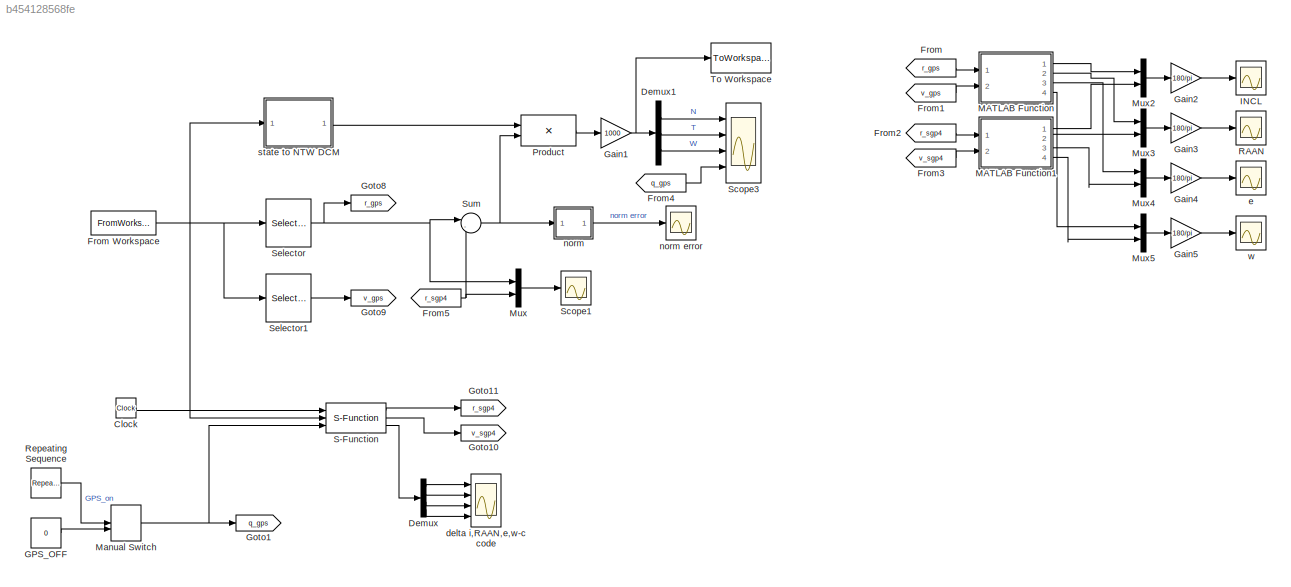
MODEL slx_b454128568fe
KIND model
CONFIG AbsTol = auto
CONFIG EnableMultiTasking = off
CONFIG FixedStep = auto
CONFIG MaxStep = auto
CONFIG MinStep = auto
CONFIG RelTol = 1e-3
CONFIG SampleTimeConstraint = Unconstrained
CONFIG Solver = VariableStepAuto
CONFIG SolverName = VariableStepAuto
CONFIG StartTime = 0.0
CONFIG StopTime = sim_stop
BLOCK [Clock] Clock
BLOCK [Demux] Demux
  DisplayOption = bar
  Ports = [1, 4]
BLOCK [Demux] Demux1
  DisplayOption = bar
  Outputs = 3
  Ports = [1, 3]
BLOCK [From] From
  GotoTag = r_gps
BLOCK [FromWorkspace] From Workspace
  VariableName = GMAT_simdata
  ZeroCross = on
BLOCK [From] From1
  GotoTag = v_gps
BLOCK [From] From2
  GotoTag = r_sgp4
BLOCK [From] From3
  GotoTag = v_sgp4
BLOCK [From] From4
  GotoTag = q_gps
BLOCK [From] From5
  GotoTag = r_sgp4
BLOCK [Constant] GPS_OFF
  Value = 0
BLOCK [Gain] Gain1
  Gain = 1000
  OutDataTypeStr = Inherit: Inherit via internal rule
  ParamDataTypeStr = Inherit: Inherit via internal rule
  SaturateOnIntegerOverflow = off
BLOCK [Gain] Gain2
  Gain = 180/pi
  OutDataTypeStr = Inherit: Inherit via internal rule
  ParamDataTypeStr = Inherit: Inherit via internal rule
  SaturateOnIntegerOverflow = off
BLOCK [Gain] Gain3
  Gain = 180/pi
  OutDataTypeStr = Inherit: Inherit via internal rule
  ParamDataTypeStr = Inherit: Inherit via internal rule
  SaturateOnIntegerOverflow = off
BLOCK [Gain] Gain4
  Gain = 180/pi
  OutDataTypeStr = Inherit: Inherit via internal rule
  ParamDataTypeStr = Inherit: Inherit via internal rule
  SaturateOnIntegerOverflow = off
BLOCK [Gain] Gain5
  Gain = 180/pi
  OutDataTypeStr = Inherit: Inherit via internal rule
  ParamDataTypeStr = Inherit: Inherit via internal rule
  SaturateOnIntegerOverflow = off
BLOCK [Goto] Goto1
  GotoTag = q_gps
BLOCK [Goto] Goto10
  GotoTag = v_sgp4
BLOCK [Goto] Goto11
  GotoTag = r_sgp4
BLOCK [Goto] Goto8
  GotoTag = r_gps
BLOCK [Goto] Goto9
  GotoTag = v_gps
BLOCK [Scope] INCL
  Floating = off
  NumInputPorts = 1
  Ports = [1]
  ScopeSpecificationString = Simulink.scopes.TimeScopeBlockCfg('CurrentConfiguration', extmgr.ConfigurationSet(extmgr.Configuration('Core','General UI',true),extmgr.Configuration('Core','Source UI',true),extmgr.Configuration('Sources','WiredSimulink',true,'DataLoggingVariableName','ScopeData2'),extmgr.Configuration('Visuals','Time Domain',true,'SerializedDisplays',{struct('MinYLimReal','51.5368','MaxYLimReal','51.64469','YLab...<+1501ch>
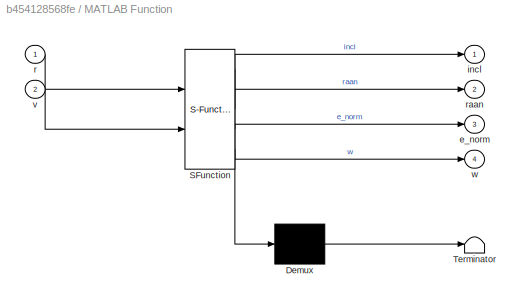
BLOCK [SubSystem] MATLAB Function
  ErrorFcn = Stateflow.Translate.translate
  PermitHierarchicalResolution = ExplicitOnly
  Ports = [2, 4]
  RequestExecContextInheritance = off
  SFBlockType = MATLAB Function
  TreatAsAtomicUnit = on
BLOCK [Demux] MATLAB Function/ Demux 
  Outputs = 1
  Ports = [1, 1]
BLOCK [S-Function] MATLAB Function/ SFunction 
  EnableBusSupport = on
  FunctionName = sf_sfun
  PortCounts = [2 5]
  Ports = [2, 5]
  SFcnIsStateOwnerBlock = off
  SFunctionDeploymentMode = off
  Tag = Stateflow S-Function augmented_sgp4_exp 1
BLOCK [Terminator] MATLAB Function/ Terminator 
BLOCK [Outport] MATLAB Function/e_norm
  IconDisplay = Port number
  Port = 3
BLOCK [Outport] MATLAB Function/incl
  IconDisplay = Port number
BLOCK [Inport] MATLAB Function/r
  IconDisplay = Port number
BLOCK [Outport] MATLAB Function/raan
  IconDisplay = Port number
  Port = 2
BLOCK [Inport] MATLAB Function/v
  IconDisplay = Port number
  Port = 2
BLOCK [Outport] MATLAB Function/w
  IconDisplay = Port number
  Port = 4
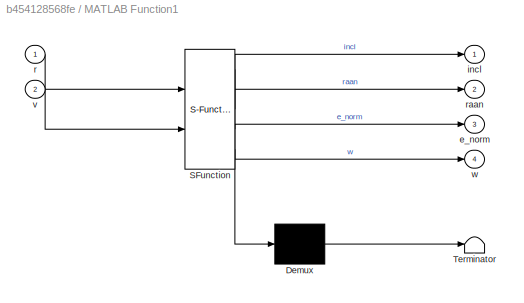
BLOCK [SubSystem] MATLAB Function1
  ErrorFcn = Stateflow.Translate.translate
  PermitHierarchicalResolution = ExplicitOnly
  Ports = [2, 4]
  RequestExecContextInheritance = off
  SFBlockType = MATLAB Function
  TreatAsAtomicUnit = on
BLOCK [Demux] MATLAB Function1/ Demux 
  Outputs = 1
  Ports = [1, 1]
BLOCK [S-Function] MATLAB Function1/ SFunction 
  EnableBusSupport = on
  FunctionName = sf_sfun
  PortCounts = [2 5]
  Ports = [2, 5]
  SFcnIsStateOwnerBlock = off
  SFunctionDeploymentMode = off
  Tag = Stateflow S-Function augmented_sgp4_exp 3
BLOCK [Terminator] MATLAB Function1/ Terminator 
BLOCK [Outport] MATLAB Function1/e_norm
  IconDisplay = Port number
  Port = 3
BLOCK [Outport] MATLAB Function1/incl
  IconDisplay = Port number
BLOCK [Inport] MATLAB Function1/r
  IconDisplay = Port number
BLOCK [Outport] MATLAB Function1/raan
  IconDisplay = Port number
  Port = 2
BLOCK [Inport] MATLAB Function1/v
  IconDisplay = Port number
  Port = 2
BLOCK [Outport] MATLAB Function1/w
  IconDisplay = Port number
  Port = 4
BLOCK [ManualSwitch] Manual Switch
BLOCK [Mux] Mux
  DisplayOption = bar
  Inputs = 2
  Ports = [2, 1]
BLOCK [Mux] Mux2
  DisplayOption = bar
  Inputs = 2
  Ports = [2, 1]
BLOCK [Mux] Mux3
  DisplayOption = bar
  Inputs = 2
  Ports = [2, 1]
BLOCK [Mux] Mux4
  DisplayOption = bar
  Inputs = 2
  Ports = [2, 1]
BLOCK [Mux] Mux5
  DisplayOption = bar
  Inputs = 2
  Ports = [2, 1]
BLOCK [Product] Product
  InputSameDT = off
  Multiplication = Matrix(*)
  OutDataTypeStr = Inherit: Inherit via internal rule
  Ports = [2, 1]
  RndMeth = Floor
  SaturateOnIntegerOverflow = off
BLOCK [Scope] RAAN
  Floating = off
  NumInputPorts = 1
  Ports = [1]
  ScopeSpecificationString = Simulink.scopes.TimeScopeBlockCfg('CurrentConfiguration', extmgr.ConfigurationSet(extmgr.Configuration('Core','General UI',true),extmgr.Configuration('Core','Source UI',true),extmgr.Configuration('Sources','WiredSimulink',true,'DataLoggingVariableName','ScopeData3'),extmgr.Configuration('Visuals','Time Domain',true,'SerializedDisplays',{struct('MinYLimReal','-44.99996','MaxYLimReal','404.99998','Y...<+1509ch>
BLOCK [Reference] Repeating Sequence  REF=simulink/Sources/Repeating
Sequence
  Ports = [0, 1]
  SourceBlock = simulink/Sources/Repeating\nSequence
  SourceProductBaseCode = SL
  SourceProductName = Simulink
  SourceType = Repeating table
BLOCK [S-Function] S-Function
  EnableBusSupport = off
  FunctionName = aSGP4
  Parameters = orbit_start_UTC
  Ports = [3, 3]
  SFcnIsStateOwnerBlock = off
  SFunctionDeploymentMode = off
BLOCK [Scope] Scope1
  Floating = off
  NumInputPorts = 1
  Ports = [1]
  ScopeSpecificationString = Simulink.scopes.TimeScopeBlockCfg('CurrentConfiguration', extmgr.ConfigurationSet(extmgr.Configuration('Core','General UI',true),extmgr.Configuration('Core','Source UI',true),extmgr.Configuration('Sources','WiredSimulink',true,'DataLoggingVariableName','ScopeData1'),extmgr.Configuration('Visuals','Time Domain',true,'SerializedDisplays',{struct('MinYLimReal','-8463.9438','MaxYLimReal','8460.06876',...<+1588ch>
BLOCK [Scope] Scope3
  Floating = off
  NumInputPorts = 4
  Ports = [4]
  ScopeSpecificationString = Simulink.scopes.TimeScopeBlockCfg('CurrentConfiguration', extmgr.ConfigurationSet(extmgr.Configuration('Core','General UI',true),extmgr.Configuration('Core','Source UI',true),extmgr.Configuration('Sources','WiredSimulink',true,'DataLoggingVariableName','ScopeData4'),extmgr.Configuration('Visuals','Time Domain',true,'SerializedDisplays',{struct('MinYLimReal','-1072.22664','MaxYLimReal','1039.87182'...<+3511ch>
BLOCK [Selector] Selector
  IndexOptions = Index vector (dialog)
  Indices = [1 2 3]
  InputPortWidth = 6
  OutputSizes = 1
  Ports = [1, 1]
BLOCK [Selector] Selector1
  IndexOptions = Index vector (dialog)
  Indices = [4 5 6]
  InputPortWidth = 6
  OutputSizes = 1
  Ports = [1, 1]
BLOCK [Sum] Sum
  IconShape = round
  InputSameDT = off
  Inputs = |-+
  OutDataTypeStr = Inherit: Inherit via internal rule
  Ports = [2, 1]
  SaturateOnIntegerOverflow = off
BLOCK [ToWorkspace] To Workspace
  FixptAsFi = on
  MaxDataPoints = inf
  Ports = [1]
  SampleTime = 1
  Save2DSignal = 3-D array (concatenate along third dimension)
  SaveFormat = Timeseries
  VariableName = simout
BLOCK [Scope] delta i,RAAN,e,w-ccode
  Floating = off
  NumInputPorts = 4
  Ports = [4]
  ScopeSpecificationString = Simulink.scopes.TimeScopeBlockCfg('CurrentConfiguration', extmgr.ConfigurationSet(extmgr.Configuration('Core','General UI',true),extmgr.Configuration('Core','Source UI',true),extmgr.Configuration('Sources','WiredSimulink',true,'DataLoggingVariableName','ScopeData5'),extmgr.Configuration('Visuals','Time Domain',true,'SerializedDisplays',{struct('MinYLimReal','-0.00091','MaxYLimReal','0.0001','YLabe...<+3413ch>
BLOCK [Scope] e
  Floating = off
  NumInputPorts = 1
  Ports = [1]
  ScopeSpecificationString = Simulink.scopes.TimeScopeBlockCfg('CurrentConfiguration', extmgr.ConfigurationSet(extmgr.Configuration('Core','General UI',true),extmgr.Configuration('Core','Source UI',true),extmgr.Configuration('Sources','WiredSimulink',true,'DataLoggingVariableName','ScopeData4'),extmgr.Configuration('Visuals','Time Domain',true,'SerializedDisplays',{struct('MinYLimReal','0.0166','MaxYLimReal','0.12305','YLabel...<+1493ch>
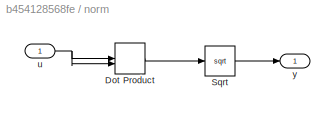
BLOCK [SubSystem] norm
  Ports = [1, 1]
  RequestExecContextInheritance = off
BLOCK [Scope] norm error
  Floating = off
  NumInputPorts = 1
  Ports = [1]
  ScopeSpecificationString = Simulink.scopes.TimeScopeBlockCfg('CurrentConfiguration', extmgr.ConfigurationSet(extmgr.Configuration('Core','General UI',true),extmgr.Configuration('Core','Source UI',true),extmgr.Configuration('Sources','WiredSimulink',true,'DataLoggingVariableName','ScopeData3'),extmgr.Configuration('Visuals','Time Domain',true,'SerializedDisplays',{struct('MinYLimReal','-2.29701','MaxYLimReal','20.97609','YLa...<+1547ch>
BLOCK [DotProduct] norm/Dot Product
  OutDataTypeStr = Inherit: Inherit via internal rule
BLOCK [Sqrt] norm/Sqrt
BLOCK [Inport] norm/u
  IconDisplay = Port number
BLOCK [Outport] norm/y
  IconDisplay = Port number
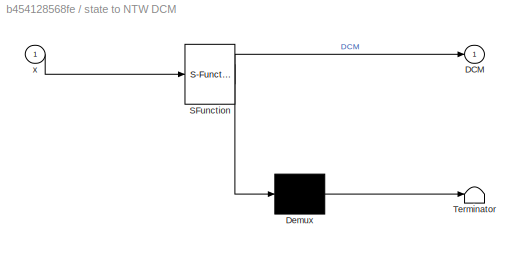
BLOCK [SubSystem] state to NTW DCM
  ErrorFcn = Stateflow.Translate.translate
  PermitHierarchicalResolution = ExplicitOnly
  Ports = [1, 1]
  RequestExecContextInheritance = off
  SFBlockType = MATLAB Function
  TreatAsAtomicUnit = on
BLOCK [Demux] state to NTW DCM/ Demux 
  Outputs = 1
  Ports = [1, 1]
BLOCK [S-Function] state to NTW DCM/ SFunction 
  EnableBusSupport = on
  FunctionName = sf_sfun
  PortCounts = [1 2]
  Ports = [1, 2]
  SFcnIsStateOwnerBlock = off
  SFunctionDeploymentMode = off
  Tag = Stateflow S-Function augmented_sgp4_exp 2
BLOCK [Terminator] state to NTW DCM/ Terminator 
BLOCK [Outport] state to NTW DCM/DCM
  IconDisplay = Port number
BLOCK [Inport] state to NTW DCM/x
  IconDisplay = Port number
BLOCK [Scope] w
  Floating = off
  NumInputPorts = 1
  Ports = [1]
  ScopeSpecificationString = Simulink.scopes.TimeScopeBlockCfg('CurrentConfiguration', extmgr.ConfigurationSet(extmgr.Configuration('Core','General UI',true),extmgr.Configuration('Core','Source UI',true),extmgr.Configuration('Sources','WiredSimulink',true,'DataLoggingVariableName','ScopeData5'),extmgr.Configuration('Visuals','Time Domain',true,'SerializedDisplays',{struct('MinYLimReal','27.28271','MaxYLimReal','119.5927','YLa...<+1505ch>
LINE Clock:1 -> S-Function:1
LINE Demux1:1 -> Scope3:1
LINE Demux1:2 -> Scope3:2
LINE Demux1:3 -> Scope3:3
LINE Demux:1 -> delta i,RAAN,e,w-ccode:1
LINE Demux:2 -> delta i,RAAN,e,w-ccode:2
LINE Demux:3 -> delta i,RAAN,e,w-ccode:3
LINE Demux:4 -> delta i,RAAN,e,w-ccode:4
NET From Workspace:1 -> S-Function:2, Selector1:1, Selector:1, state to NTW DCM:1
LINE From1:1 -> MATLAB Function:2
LINE From2:1 -> MATLAB Function1:1
LINE From3:1 -> MATLAB Function1:2
LINE From4:1 -> Scope3:4
NET From5:1 -> Mux:2, Sum:2
LINE From:1 -> MATLAB Function:1
LINE GPS_OFF:1 -> Manual Switch:2
NET Gain1:1 -> Demux1:1, To Workspace:1
LINE Gain2:1 -> INCL:1
LINE Gain3:1 -> RAAN:1
LINE Gain4:1 -> e:1
LINE Gain5:1 -> w:1
LINE MATLAB Function1:1 -> Mux2:2
LINE MATLAB Function1:2 -> Mux3:2
LINE MATLAB Function1:3 -> Mux4:2
LINE MATLAB Function1:4 -> Mux5:2
LINE MATLAB Function:1 -> Mux2:1
LINE MATLAB Function:2 -> Mux3:1
LINE MATLAB Function:3 -> Mux4:1
LINE MATLAB Function:4 -> Mux5:1
NET Manual Switch:1 -> Goto1:1, S-Function:3
LINE Mux2:1 -> Gain2:1
LINE Mux3:1 -> Gain3:1
LINE Mux4:1 -> Gain4:1
LINE Mux5:1 -> Gain5:1
LINE Mux:1 -> Scope1:1
LINE Product:1 -> Gain1:1
LINE Repeating Sequence:1 -> Manual Switch:1
LINE S-Function:1 -> Goto11:1
LINE S-Function:2 -> Goto10:1
LINE S-Function:3 -> Demux:1
LINE Selector1:1 -> Goto9:1
NET Selector:1 -> Goto8:1, Mux:1, Sum:1
NET Sum:1 -> Product:2, norm:1
LINE norm/Dot Product:1 -> norm/Sqrt:1
LINE norm/Sqrt:1 -> norm/y:1
NET norm/u:1 -> norm/Dot Product:1, norm/Dot Product:2
LINE norm:1 -> norm error:1
LINE state to NTW DCM:1 -> Product:1
note: NET lines group one-source signal fan-out (src -> all destinations, sorted); 1:1 wires keep LINE
CHART MATLAB Function states=1 transitions=1
  STATE_LABEL 'eML_blk_kernel()'
  STATE_LABEL 'SCRIPT:\nfunction [incl,raan,e_norm,w] = fcn(r,v)\n\nmu = 3.986004418e5;\nh = cross(r,v);\nkhat = [0 0 1];\nn = cross(khat, h);\ne = cross(v,h)/mu - r/norm(r);\ne_norm = norm(e);\nincl = acos(h(3)/norm(h));\nraan = acos(n(1)/norm(n));\nif (n(2) < 0)\n    raan = 2*pi - raan;\nend\nw = acos(dot(n,e)/(norm(n)*norm(e)));\nif (e(3) < 0)\n    w = 2*pi - w;\nend\n'
CHART state to NTW DCM states=1 transitions=1
  STATE_LABEL 'eML_blk_kernel()'
  STATE_LABEL "SCRIPT:\nfunction DCM = fcn(x)\n\n% function takes in satellite state r,v\n% generates DCM to convert ECI to NTW\nr = x(1:3);\nv = x(4:6);\nT = v/norm(v);\nW = cross(r,v);\nW = W/norm(W);\nN = cross(T,W);\n\nDCM = [N,T,W]';\n"
CHART MATLAB Function1 states=1 transitions=1
  STATE_LABEL 'eML_blk_kernel()'
  STATE_LABEL 'SCRIPT:\nfunction [incl,raan,e_norm,w] = fcn(r,v)\n\nmu = 3.986004418e5;\nh = cross(r,v);\nkhat = [0 0 1];\nn = cross(khat, h);\ne = cross(v,h)/mu - r/norm(r);\ne_norm = norm(e);\nincl = acos(h(3)/norm(h));\nraan = acos(n(1)/norm(n));\nif (n(2) < 0)\n    raan = 2*pi - raan;\nend\nw = acos(dot(n,e)/(norm(n)*norm(e)));\nif (e(3) < 0)\n    w = 2*pi - w;\nend\n'
